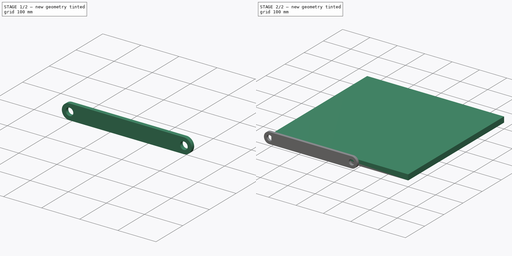
[diagram: build sequence overview — one tinted view per stage of 2, left to right]
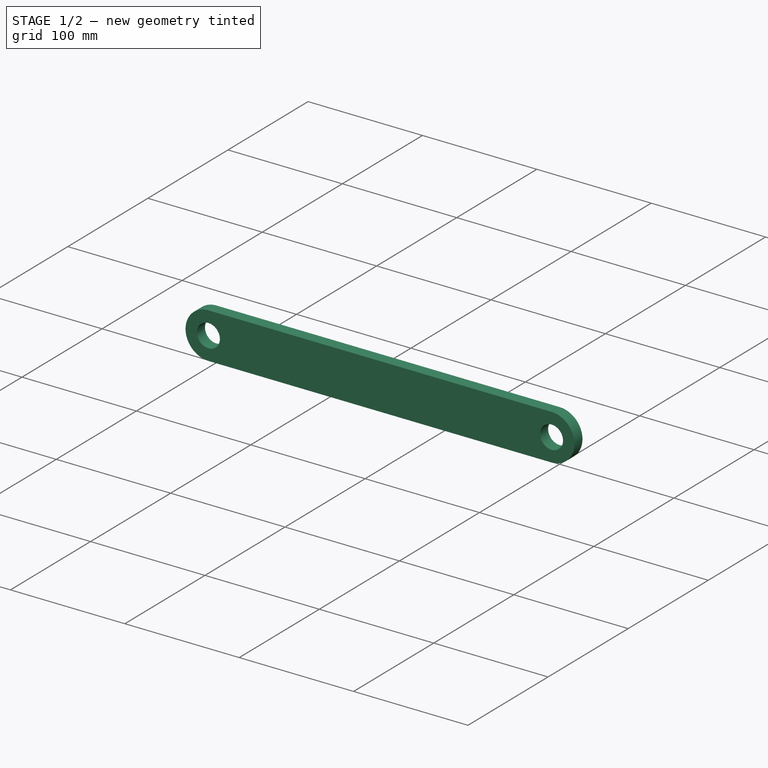
[diagram: stage 1 of 2 — iso view after this stage's code; geometry added in this stage tinted green]
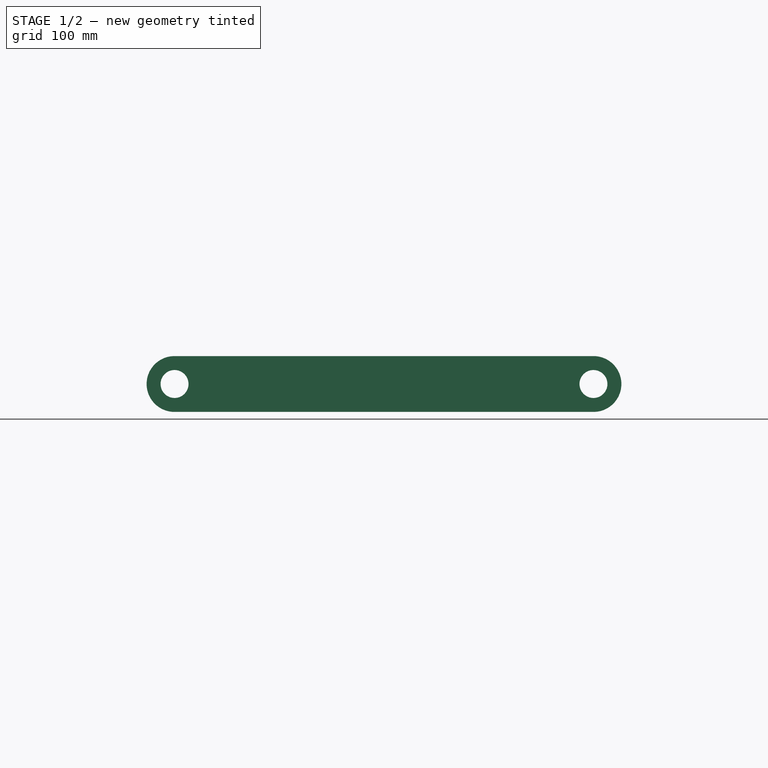
[diagram: stage 1 of 2 — front view after this stage's code; geometry added in this stage tinted green]
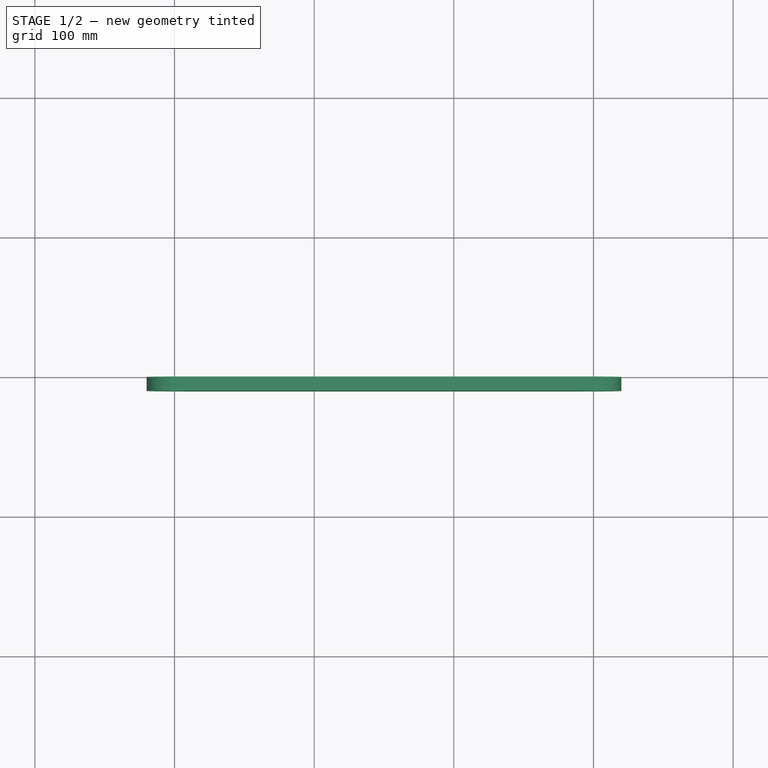
[diagram: stage 1 of 2 — top view after this stage's code; geometry added in this stage tinted green]
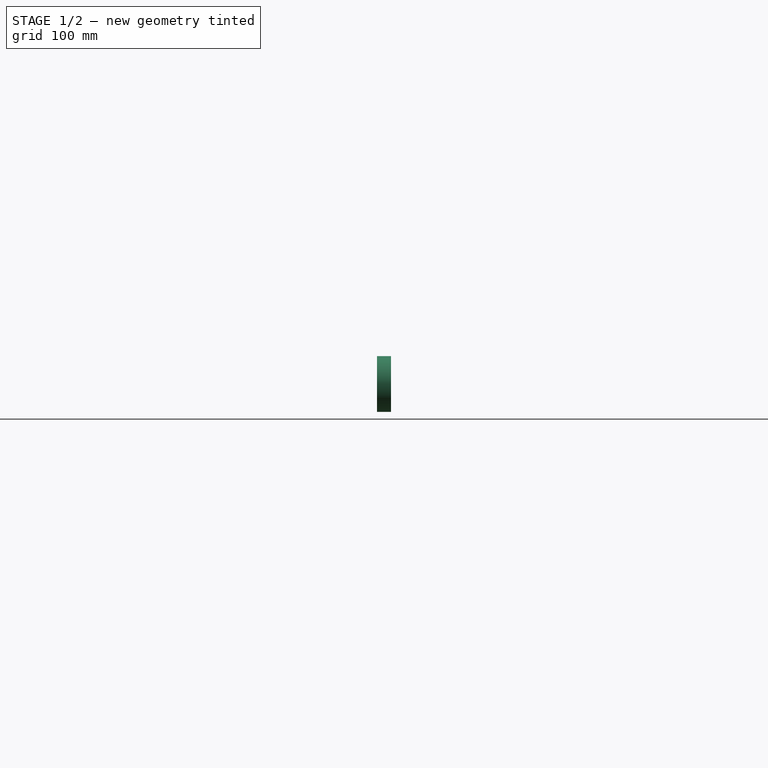
[diagram: stage 1 of 2 — right view after this stage's code; geometry added in this stage tinted green]
FCSTD DOCUMENT  (FreeCAD 0.19R24212 (Git))
Label: Assembly4Decouverte
License: Creative Commons Attribution
LicenseURL: http://creativecommons.org/licenses/by/4.0/
objects: PartDesign::CoordinateSystem×8, App::Link×7, Sketcher::SketchObject×4, App::Part×3, App::DocumentObjectGroup×2, PartDesign::Pad×2, PartDesign::Body×2, App::FeaturePython×1
note: 18 computed .brp shape members not serialized (recipe doc carries the construction recipe); baked Part::Feature solids carry a one-line shape summary decoded from their .brp
EXTERNAL_REF file=Bielle1.FCStd obj=LCS_0
EXTERNAL_REF file=Bielle1.FCStd obj=Body
EXTERNAL_REF file=Bielle2.FCStd obj=Local_CS
EXTERNAL_REF file=Bielle2.FCStd obj=Body
EXTERNAL_REF file=Façade.FCStd obj=Local_CS
EXTERNAL_REF file=Façade.FCStd obj=Body

FEATURE [PartDesign::Body] Body_facade
  Group = -> [LCS_0003,Sketch001,Pad001]
  Origin = -> Origin004
  Tip = -> Pad001
FEATURE [App::Part] Part_facade
  Group = -> [LCS_0002,Body_facade]
  Origin = -> Origin003
FEATURE [App::DocumentObjectGroup] Parts
  Group = -> [Part,Part_facade]
FEATURE [App::Link] Part_facade001
  AssemblyType = Asm4EE
  AttachedBy = #LCS_0002
  AttachedTo = Parent Assembly#LCS_2
  AttachmentOffset = pos=(0,0,0) rot=(1,0,0;4.71239rad)
  LinkPlacement = pos=(7.37e-14,319.919,-11.9349) rot=(0,-0.632536,-0.774531;3.14159rad)
  LinkedObject = -> Part_facade
  Placement = pos=(7.37e-14,319.919,-11.9349) rot=(0,-0.632536,-0.774531;3.14159rad)
  expr: Placement = LCS_2.Placement * AttachmentOffset * LCS_0002.Placement ^ -1
FEATURE [App::Link] Part002
  AssemblyType = Asm4EE
  AttachedBy = #LCS_0
  AttachedTo = Parent Assembly#LCS_3
  AttachmentOffset = pos=(500,0,0) rot=(0.57735,-0.57735,0.57735;2.0944rad)
  LinkPlacement = pos=(-500,1.265e-13,80) rot=(0.707089,0.707089,0.007129;3.15585rad)
  LinkedObject = -> Part
  Placement = pos=(-500,1.265e-13,80) rot=(0.707089,0.707089,0.007129;3.15585rad)
  expr: Placement = LCS_3.Placement * AttachmentOffset * LCS_0.Placement ^ -1
  expr: .Placement.Base.x = -Sketch001.Constraints.largeur_facade
FEATURE [App::Part] Model
  Configuration = 0
  Group = -> [LCS_Origin,Constraints,Variables,Sketch_1,LCS_1,LCS_2,LCS_3,Sans_nom1_Body,Sans_nom2_Body,Sans_nom3_Body,Part001,Sketch_2,Bielle1_Body,Part_facade001,Part002]
  Origin = -> Origin
  Type = Assembly4 Model

RESOLVED EXTERNAL PARTS (link-assembly join: the EXTERNAL_REF files above that resolve inside this repo's crawl, each included once):
---- part Bielle1.FCStd = doc fcstd_1a8f30cc12fc ----
FCSTD DOCUMENT  (FreeCAD 0.19R24212 (Git))
Label: Bielle1
License: Creative Commons Attribution
LicenseURL: http://creativecommons.org/licenses/by/4.0/
objects: PartDesign::CoordinateSystem×1, Sketcher::SketchObject×1, PartDesign::Pad×1, PartDesign::Body×1
note: 5 computed .brp shape members not serialized (recipe doc carries the construction recipe); baked Part::Feature solids carry a one-line shape summary decoded from their .brp

FEATURE [PartDesign::CoordinateSystem] LCS_0
  AttacherType = Attacher::AttachEngine3D
  MapMode = 2
  Support = -> [X_Axis001]
FEATURE [Sketcher::SketchObject] Sketch
  FullyConstrained = true
  MapMode = 5
  Placement = pos=(0,0,0) rot=(0.57735,0.57735,0.57735;2.0944rad)
  Support = -> [YZ_Plane001]
  sketch-geometry (6):
    g0: ArcOfCircle CenterX=0 CenterY=0 CenterZ=0 NormalX=0 NormalY=0 NormalZ=1 AngleXU=0 Radius=20 StartAngle=1.5708 EndAngle=4.71239
    g1: ArcOfCircle CenterX=240 CenterY=1.4244e-12 CenterZ=0 NormalX=0 NormalY=0 NormalZ=1 AngleXU=0 Radius=20 StartAngle=4.71239 EndAngle=7.85398
    g2: LineSegment StartX=-4.03092e-11 StartY=-20 StartZ=0 EndX=240 EndY=-20 EndZ=0
    g3: LineSegment StartX=-4.01089e-11 StartY=20 StartZ=0 EndX=240 EndY=20 EndZ=0
    g4: Circle CenterX=0 CenterY=0 CenterZ=0 NormalX=0 NormalY=0 NormalZ=1 AngleXU=0 Radius=6
    g5: Circle CenterX=240 CenterY=1.4244e-12 CenterZ=0 NormalX=0 NormalY=0 NormalZ=1 AngleXU=0 Radius=6
  constraints (13):
    c: Tangent(g0,g3) = 1.5708
    c: Tangent(g0,g2) = -1.5708
    c: Tangent(g2,g1) = -1.5708
    c: Tangent(g3,g1) = 1.5708
    c: Horizontal(g2)
    c: Equal(g0,g1)
    c: Coincident(g0,g-1)
    c: Coincident(g4,g0)
    c: Coincident(g5,g1)
    c: Equal(g4,g5)
    c: Radius(g0) = 20
    c: Radius(g4) = 6
    c: DistanceX(g0,g1) = 240
FEATURE [PartDesign::Pad] Pad
  Direction = (1,1,1)
  Length = 10
  Length2 = 100
  Placement = pos=(0,0,0) rot=(0.57735,0.57735,0.57735;2.0944rad)
  Profile = -> Sketch
  Refine = true
  Type = 0
FEATURE [PartDesign::Body] Body
  Group = -> [LCS_0,Sketch,Pad]
  Origin = -> Origin001
  Tip = -> Pad
---- part Bielle2.FCStd = doc fcstd_17f21920dc8b ----
FCSTD DOCUMENT  (FreeCAD 0.19R24212 (Git))
Label: Bielle2
License: Creative Commons Attribution
LicenseURL: http://creativecommons.org/licenses/by/4.0/
objects: Sketcher::SketchObject×1, PartDesign::Pad×1, PartDesign::CoordinateSystem×1, PartDesign::Body×1
note: 5 computed .brp shape members not serialized (recipe doc carries the construction recipe); baked Part::Feature solids carry a one-line shape summary decoded from their .brp

FEATURE [Sketcher::SketchObject] Sketch
  FullyConstrained = true
  MapMode = 5
  Placement = pos=(0,0,0) rot=(1,0,0;1.5708rad)
  Support = -> [XZ_Plane]
  sketch-geometry (6):
    g0: Circle CenterX=0 CenterY=0 CenterZ=0 NormalX=0 NormalY=0 NormalZ=1 AngleXU=0 Radius=6
    g1: Circle CenterX=300 CenterY=0 CenterZ=0 NormalX=0 NormalY=0 NormalZ=1 AngleXU=0 Radius=6
    g2: ArcOfCircle CenterX=0 CenterY=0 CenterZ=0 NormalX=0 NormalY=0 NormalZ=1 AngleXU=0 Radius=20 StartAngle=1.5708 EndAngle=4.71239
    g3: ArcOfCircle CenterX=300 CenterY=0 CenterZ=0 NormalX=0 NormalY=0 NormalZ=1 AngleXU=0 Radius=20 StartAngle=4.71239 EndAngle=7.85398
    g4: LineSegment StartX=0 StartY=-20 StartZ=0 EndX=300 EndY=-20 EndZ=0
    g5: LineSegment StartX=-3.2e-15 StartY=20 StartZ=0 EndX=300 EndY=20 EndZ=0
  constraints (13):
    c: Coincident(g0,g-1)
    c: PointOnObject(g1,g-1)
    c: Tangent(g2,g5) = 1.5708
    c: Tangent(g2,g4) = -1.5708
    c: Tangent(g4,g3) = -1.5708
    c: Tangent(g5,g3) = 1.5708
    c: Horizontal(g4)
    c: Coincident(g2,g0)
    c: Coincident(g1,g3)
    c: Equal(g0,g1)
    c: Radius(g2) = 20
    c: Radius(g0) = 6
    c: DistanceX(g0,g1) = 300
FEATURE [PartDesign::Pad] Pad
  Direction = (1,1,1)
  Length = 10
  Length2 = 100
  Placement = pos=(0,0,0) rot=(1,0,0;1.5708rad)
  Profile = -> Sketch
  Refine = true
  Type = 0
FEATURE [PartDesign::CoordinateSystem] Local_CS
  AttacherType = Attacher::AttachEngine3D
  MapMode = 11
  Placement = pos=(0,0,0) rot=(0.57735,-0.57735,0.57735;2.0944rad)
  Support = -> [Sketch]
FEATURE [PartDesign::Body] Body
  Group = -> [Sketch,Pad,Local_CS]
  Origin = -> Origin
  Tip = -> Pad
---- part Façade.FCStd = doc fcstd_ceb81dbaa7bd ----
FCSTD DOCUMENT  (FreeCAD 0.19R24212 (Git))
Label: Façade
License: Creative Commons Attribution
LicenseURL: http://creativecommons.org/licenses/by/4.0/
objects: Sketcher::SketchObject×1, PartDesign::Pad×1, PartDesign::CoordinateSystem×1, PartDesign::Body×1
note: 5 computed .brp shape members not serialized (recipe doc carries the construction recipe); baked Part::Feature solids carry a one-line shape summary decoded from their .brp

FEATURE [Sketcher::SketchObject] Sketch
  FullyConstrained = false
  MapMode = 5
  Support = -> [XY_Plane001]
  sketch-geometry (4):
    g0: LineSegment StartX=0 StartY=0 StartZ=0 EndX=292.984 EndY=0 EndZ=0
    g1: LineSegment StartX=292.984 StartY=0 StartZ=0 EndX=292.984 EndY=500 EndZ=0
    g2: LineSegment StartX=292.984 StartY=500 StartZ=0 EndX=0 EndY=500 EndZ=0
    g3: LineSegment StartX=0 StartY=500 StartZ=0 EndX=0 EndY=0 EndZ=0
  constraints (10):
    c: Coincident(g0,g1)
    c: Coincident(g1,g2)
    c: Coincident(g2,g3)
    c: Coincident(g3,g0)
    c: Horizontal(g0)
    c: Horizontal(g2)
    c: Vertical(g1)
    c: Vertical(g3)
    c: Coincident(g0,g-1)
    c: DistanceY(g3,g3) = 500
FEATURE [PartDesign::Pad] Pad
  Direction = (1,1,1)
  Length = 20
  Length2 = 100
  Midplane = true
  Profile = -> Sketch
  Refine = true
  Type = 0
FEATURE [PartDesign::CoordinateSystem] Local_CS
  AttacherType = Attacher::AttachEngine3D
  MapMode = 7
  Placement = pos=(0,500,0) rot=(0,0.707107,0.707107;3.14159rad)
  Support = -> [Sketch]
FEATURE [PartDesign::Body] Body
  Group = -> [Sketch,Pad,Local_CS]
  Origin = -> Origin001
  Tip = -> Pad
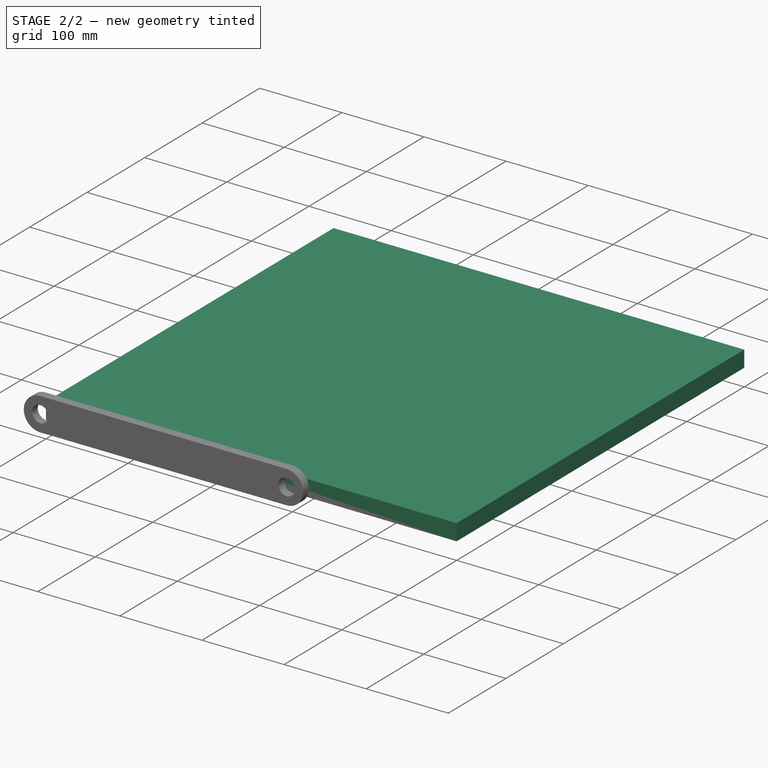
[diagram: stage 2 of 2 — iso view after this stage's code; geometry added in this stage tinted green]
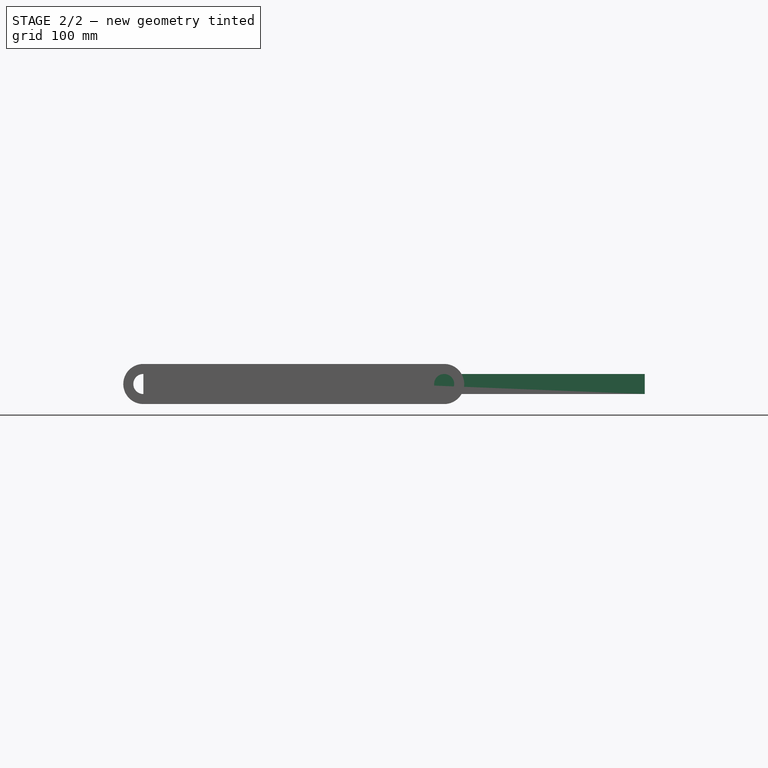
[diagram: stage 2 of 2 — front view after this stage's code; geometry added in this stage tinted green]
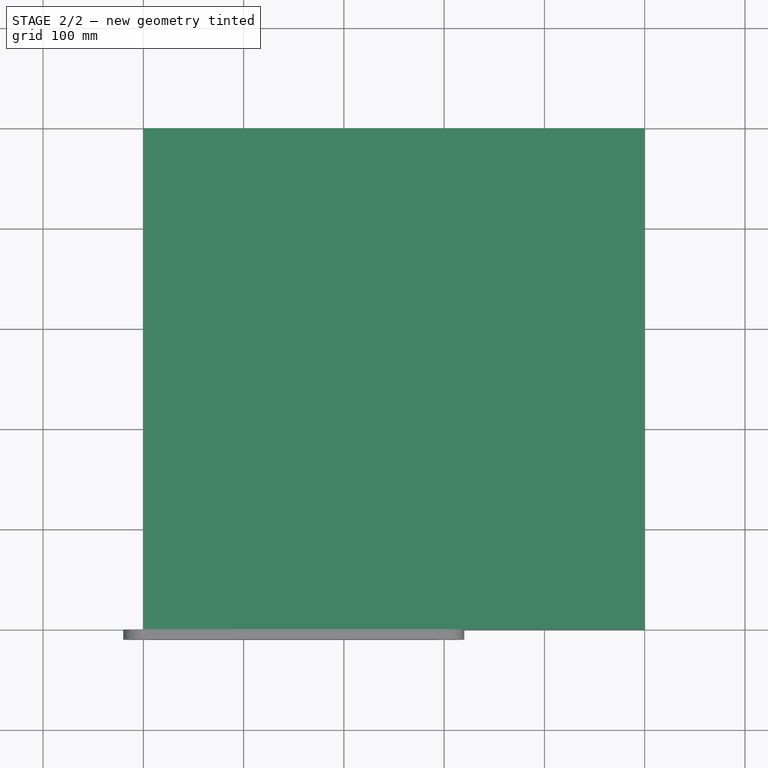
[diagram: stage 2 of 2 — top view after this stage's code; geometry added in this stage tinted green]
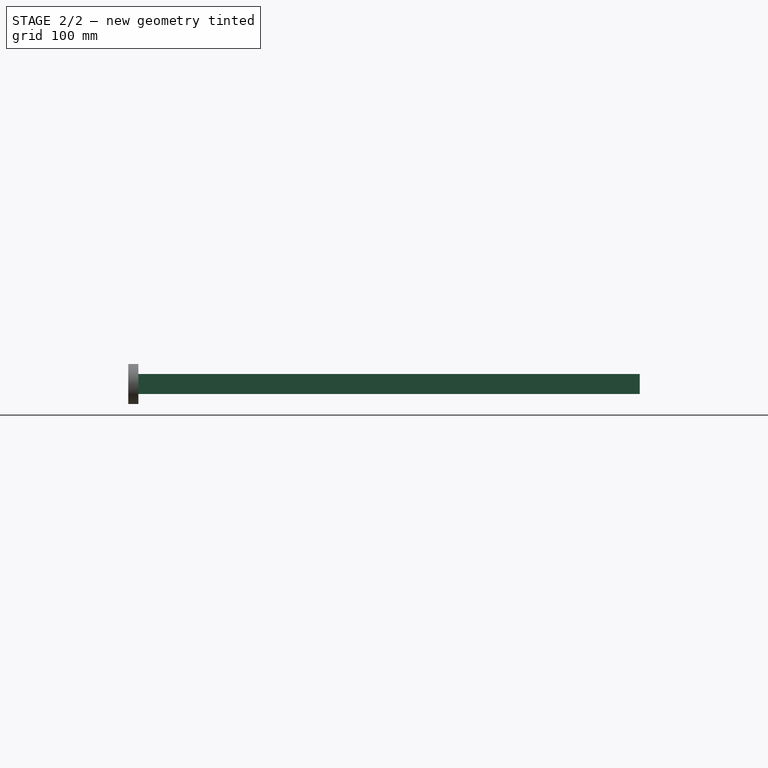
[diagram: stage 2 of 2 — right view after this stage's code; geometry added in this stage tinted green]
FEATURE [PartDesign::CoordinateSystem] LCS_Origin
  AttacherType = Attacher::AttachEngine3D
  MapMode = 2
  Support = -> [X_Axis]
FEATURE [App::DocumentObjectGroup] Constraints
FEATURE [App::FeaturePython] Variables  # WARN: FeaturePython — macro-defined, semantics opaque (R4)
  angle_ouverture = 0
FEATURE [Sketcher::SketchObject] Sketch_1
  FullyConstrained = true
  MapMode = 5
  Placement = pos=(0,0,0) rot=(0.57735,0.57735,0.57735;2.0944rad)
  Support = -> [YZ_Plane]
  expr: Constraints[11] = Variables.angle_ouverture
  sketch-geometry (3):
    g0: LineSegment StartX=319.919 StartY=-11.9349 StartZ=0 EndX=220.02 EndY=477.984 EndZ=0
    g1: LineSegment StartX=0 StartY=380 StartZ=0 EndX=240 EndY=380 EndZ=0
    g2: LineSegment StartX=299.939 StartY=86.0488 StartZ=0 EndX=0 EndY=80 EndZ=0
  constraints (12):
    c: PointOnObject(g1,g0)
    c: Distance(g0) = 500  'hauteur_facade'
    c: Distance(g1,g0) = 100
    c: Distance(g1) = 240  'lg_bielle1'
    c: PointOnObject(g1,g-2)
    c: DistanceY(g1) = 380
    c: PointOnObject(g2,g0)
    c: PointOnObject(g2,g-2)
    c: DistanceY(g-1,g2) = 80
    c: Distance(g2) = 300  'lg_bielle2'
    c: Distance(g0,g2) = 100
    c: Angle(g1) = 0
FEATURE [PartDesign::CoordinateSystem] LCS_1
  AttacherType = Attacher::AttachEngine3D
  MapMode = 7
  Placement = pos=(-8.44e-14,8.44e-14,380) rot=(1,0,0;1.5708rad)
  Support = -> [Sketch_1]
FEATURE [PartDesign::CoordinateSystem] LCS_2
  AttacherType = Attacher::AttachEngine3D
  MapMode = 7
  Placement = pos=(7.37e-14,319.919,-11.9349) rot=(0,0.994947,0.100406;3.14159rad)
  Support = -> [Sketch_1]
FEATURE [PartDesign::CoordinateSystem] LCS_3
  AttacherType = Attacher::AttachEngine3D
  MapMode = 7
  Placement = pos=(-1.78e-14,1.78e-14,80) rot=(0,0.699942,0.7142;3.14159rad)
  Support = -> [Sketch_1]
FEATURE [App::Link] Sans_nom1_Body
  AssemblyType = Asm4EE
  AttachedBy = #LCS_0
  AttachedTo = Parent Assembly#LCS_1
  AttachmentOffset = pos=(0,0,0) rot=(1,0,0;4.71239rad)
  LinkPlacement = pos=(-8.44e-14,8.44e-14,380) rot=(0,0,1;0rad)
  LinkedObject = -> <external Bielle1.FCStd>#Body
  Placement = pos=(-8.44e-14,8.44e-14,380) rot=(0,0,1;0rad)
  expr: Placement = LCS_1.Placement * AttachmentOffset * Bielle1#LCS_0.Placement ^ -1
FEATURE [App::Link] Sans_nom2_Body
  AssemblyType = Asm4EE
  AttachedBy = #Local_CS
  AttachedTo = Parent Assembly#LCS_3
  AttachmentOffset = pos=(0,0,0) rot=(-0.57735,-0.57735,0.57735;2.0944rad)
  LinkPlacement = pos=(-1.78e-14,1.78e-14,80) rot=(0.010081,-0.010081,0.999898;1.5709rad)
  LinkedObject = -> <external Bielle2.FCStd>#Body
  Placement = pos=(-1.78e-14,1.78e-14,80) rot=(0.010081,-0.010081,0.999898;1.5709rad)
  expr: Placement = LCS_3.Placement * AttachmentOffset * Bielle2#Local_CS.Placement ^ -1
FEATURE [App::Link] Sans_nom3_Body
  AssemblyType = Asm4EE
  AttachedBy = #Local_CS
  AttachedTo = Parent Assembly#LCS_2
  AttachmentOffset = pos=(0,0,0) rot=(0,0,1;3.14159rad)
  LinkPlacement = pos=(2.11e-14,220.02,477.984) rot=(0,0.774531,-0.632536;3.14159rad)
  LinkedObject = -> <external Façade.FCStd>#Body
  Placement = pos=(2.11e-14,220.02,477.984) rot=(0,0.774531,-0.632536;3.14159rad)
  expr: Placement = LCS_2.Placement * AttachmentOffset * Fa__ade#Local_CS.Placement ^ -1
FEATURE [PartDesign::CoordinateSystem] LCS_0
  AttacherType = Attacher::AttachEngine3D
  MapMode = 2
  Support = -> [X_Axis001]
FEATURE [PartDesign::CoordinateSystem] LCS_0001
  AttacherType = Attacher::AttachEngine3D
  MapMode = 2
  Support = -> [X_Axis002]
FEATURE [Sketcher::SketchObject] Sketch
  FullyConstrained = true
  MapMode = 5
  Placement = pos=(0,0,0) rot=(1,0,0;1.5708rad)
  Support = -> [XZ_Plane002]
  expr: Constraints[12] = Sketch_1.Constraints.lg_bielle2
  sketch-geometry (6):
    g0: ArcOfCircle CenterX=0 CenterY=0 CenterZ=0 NormalX=0 NormalY=0 NormalZ=1 AngleXU=0 Radius=20 StartAngle=1.5708 EndAngle=4.71239
    g1: ArcOfCircle CenterX=300 CenterY=5e-16 CenterZ=0 NormalX=0 NormalY=0 NormalZ=1 AngleXU=0 Radius=20 StartAngle=4.71239 EndAngle=7.85398
    g2: LineSegment StartX=-3.7e-15 StartY=-20 StartZ=0 EndX=300 EndY=-20 EndZ=0
    g3: LineSegment StartX=-3.2e-15 StartY=20 StartZ=0 EndX=300 EndY=20 EndZ=0
    g4: Circle CenterX=0 CenterY=0 CenterZ=0 NormalX=0 NormalY=0 NormalZ=1 AngleXU=0 Radius=10
    g5: Circle CenterX=300 CenterY=5e-16 CenterZ=0 NormalX=0 NormalY=0 NormalZ=1 AngleXU=0 Radius=10
  constraints (13):
    c: Tangent(g0,g3) = 1.5708
    c: Tangent(g0,g2) = -1.5708
    c: Tangent(g2,g1) = -1.5708
    c: Tangent(g3,g1) = 1.5708
    c: Horizontal(g2)
    c: Equal(g0,g1)
    c: Coincident(g0,g-1)
    c: Coincident(g4,g0)
    c: Coincident(g5,g1)
    c: Equal(g4,g5)
    c: Radius(g0) = 20
    c: Radius(g4) = 10
    c: DistanceX(g0,g1) = 300
FEATURE [PartDesign::Pad] Pad
  Direction = (1,1,1)
  Length = 10
  Length2 = 100
  Placement = pos=(0,0,0) rot=(1,0,0;1.5708rad)
  Profile = -> Sketch
  Refine = true
  Type = 0
FEATURE [PartDesign::Body] Body
  Group = -> [LCS_0001,Sketch,Pad]
  Origin = -> Origin002
  Tip = -> Pad
FEATURE [App::Part] Part
  Group = -> [LCS_0,Body]
  Origin = -> Origin001
FEATURE [App::Link] Part001
  AssemblyType = Asm4EE
  AttachedBy = #LCS_0
  AttachedTo = Parent Assembly#LCS_3
  AttachmentOffset = pos=(0,0,0) rot=(-0.57735,-0.57735,-0.57735;2.0944rad)
  LinkPlacement = pos=(-1.78e-14,1.78e-14,80) rot=(0.010081,-0.010081,0.999898;1.5709rad)
  LinkedObject = -> Part
  Placement = pos=(-1.78e-14,1.78e-14,80) rot=(0.010081,-0.010081,0.999898;1.5709rad)
  expr: Placement = LCS_3.Placement * AttachmentOffset * LCS_0.Placement ^ -1
FEATURE [Sketcher::SketchObject] Sketch_2
  AttachmentOffset = pos=(0,0,-200) rot=(0,0,1;0rad)
  FullyConstrained = true
  MapMode = 5
  Placement = pos=(-200,4.44e-14,-4.44e-14) rot=(0.57735,0.57735,0.57735;2.0944rad)
  Support = -> [YZ_Plane]
  expr: Constraints[11] = Sketch_1.Constraints[11]
  expr: Constraints[8] = Sketch_1.Constraints[8]
  expr: .Constraints.lg_bielle1 = Sketch_1.Constraints[3]
  expr: Constraints[10] = Sketch_1.Constraints[10]
  expr: Constraints[5] = Sketch_1.Constraints[5]
  expr: Constraints[2] = Sketch_1.Constraints[2]
  expr: .Constraints.lg_bielle2 = Sketch_1.Constraints[9]
  expr: Constraints[1] = Sketch_1.Constraints.hauteur_facade
  sketch-geometry (3):
    g0: LineSegment StartX=319.919 StartY=-11.9349 StartZ=0 EndX=220.02 EndY=477.984 EndZ=0
    g1: LineSegment StartX=0 StartY=380 StartZ=0 EndX=240 EndY=380 EndZ=0
    g2: LineSegment StartX=299.939 StartY=86.0488 StartZ=0 EndX=0 EndY=80 EndZ=0
  constraints (12):
    c: PointOnObject(g1,g0)
    c: Distance(g0) = 500
    c: Distance(g1,g0) = 100
    c: Distance(g1) = 240  'lg_bielle1'
    c: PointOnObject(g1,g-2)
    c: DistanceY(g1) = 380
    c: PointOnObject(g2,g0)
    c: PointOnObject(g2,g-2)
    c: DistanceY(g-1,g2) = 80
    c: Distance(g2) = 300  'lg_bielle2'
    c: Distance(g0,g2) = 100
    c: Angle(g1) = 0
FEATURE [App::Link] Bielle1_Body
  AssemblyType = Asm4EE
  AttachedBy = #LCS_0
  AttachedTo = Sans_nom1_Body#LCS_0
  AttachmentOffset = pos=(-306,0,0) rot=(0,0,1;0rad)
  LinkPlacement = pos=(-306,1.523e-13,380) rot=(0,0,1;0rad)
  LinkedObject = -> <external Bielle1.FCStd>#Body
  Placement = pos=(-306,1.523e-13,380) rot=(0,0,1;0rad)
  expr: Placement = Sans_nom1_Body.Placement * Bielle1#LCS_0.Placement * AttachmentOffset * Bielle1#LCS_0.Placement ^ -1
FEATURE [PartDesign::CoordinateSystem] LCS_0002
  AttacherType = Attacher::AttachEngine3D
  MapMode = 2
  Support = -> [X_Axis003]
FEATURE [PartDesign::CoordinateSystem] LCS_0003
  AttacherType = Attacher::AttachEngine3D
  MapMode = 2
  Support = -> [X_Axis004]
FEATURE [Sketcher::SketchObject] Sketch001
  FullyConstrained = true
  MapMode = 5
  Support = -> [XY_Plane004]
  expr: Constraints[9] = Sketch_1.Constraints.hauteur_facade
  sketch-geometry (4):
    g0: LineSegment StartX=0 StartY=0 StartZ=0 EndX=500 EndY=0 EndZ=0
    g1: LineSegment StartX=500 StartY=0 StartZ=0 EndX=500 EndY=500 EndZ=0
    g2: LineSegment StartX=500 StartY=500 StartZ=0 EndX=0 EndY=500 EndZ=0
    g3: LineSegment StartX=0 StartY=500 StartZ=0 EndX=0 EndY=0 EndZ=0
  constraints (12):
    c: Coincident(g0,g1)
    c: Coincident(g1,g2)
    c: Coincident(g2,g3)
    c: Coincident(g3,g0)
    c: Horizontal(g0)
    c: Horizontal(g2)
    c: Vertical(g1)
    c: Vertical(g3)
    c: DistanceX(g2,g2) = 500  'largeur_facade'
    c: DistanceY(g3,g3) = 500
    c: DistanceX(g0) = 0
    c: DistanceY(g0) = 0
FEATURE [PartDesign::Pad] Pad001
  Direction = (1,1,1)
  Length = 20
  Length2 = 100
  Midplane = true
  Profile = -> Sketch001
  Refine = true
  Type = 0
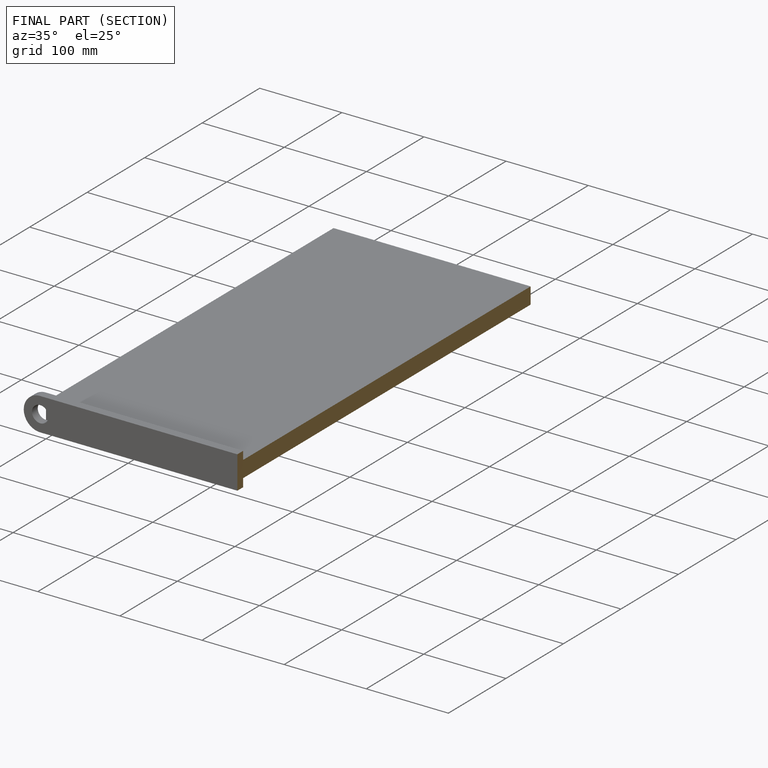
[diagram: finished part — half-section view (interior)]
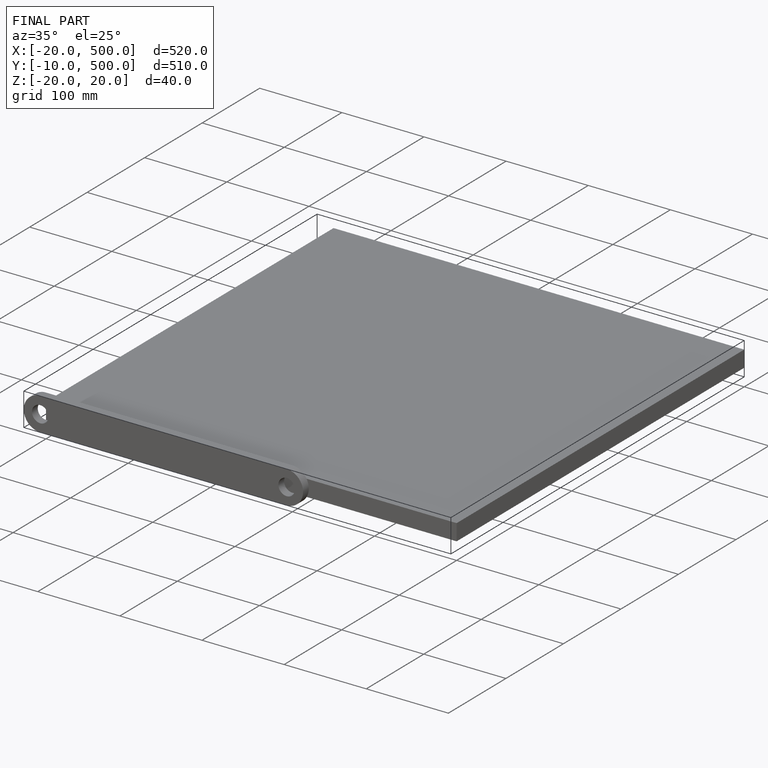
[diagram: finished part — iso view with bounding-box wireframe]
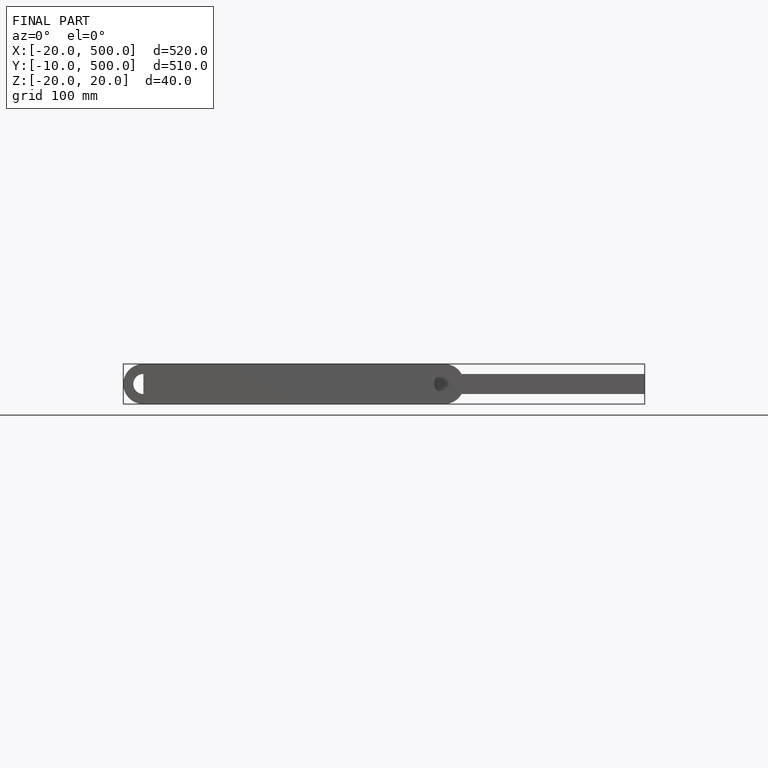
[diagram: finished part — front view with bounding-box wireframe]
